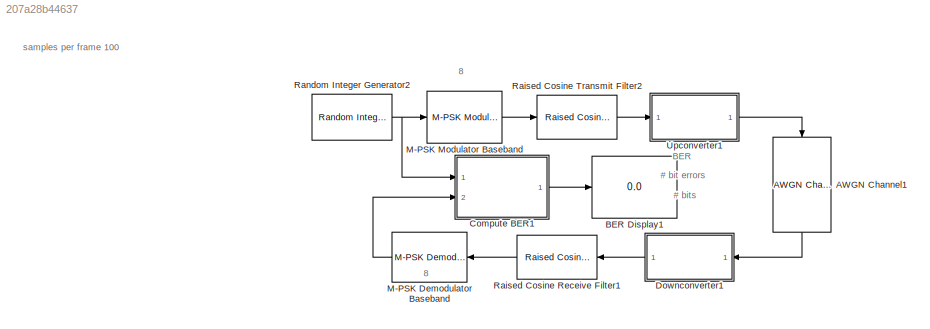
MODEL slx_207a28b44637
KIND model
CONFIG AbsTol = auto
CONFIG EnableMultiTasking = off
CONFIG FixedStep = auto
CONFIG MaxStep = auto
CONFIG MinStep = auto
CONFIG RelTol = 1e-3
CONFIG SampleTimeConstraint = Unconstrained
CONFIG SolverName = VariableStepAuto
CONFIG StartTime = 0.0
CONFIG StopTime = 1000*1e-6
BLOCK [Reference] AWGN Channel1  REF=commchan3/AWGN
Channel
  NameLocation = left
  Ports = [1, 1]
  SourceBlock = commchan3/AWGN\nChannel
  SourceProductBaseCode = CM
  SourceType = AWGN Channel
  UserDataPersistent = on
BLOCK [Display] BER Display1
  Decimation = 1
  Ports = [1]
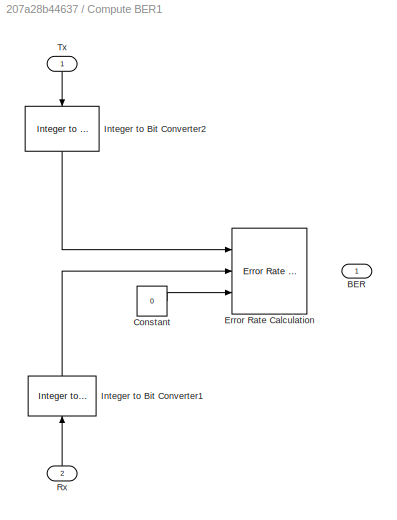
BLOCK [SubSystem] Compute BER1
  Ports = [2, 1]
  RequestExecContextInheritance = off
BLOCK [Outport] Compute BER1/BER
  VectorParamsAs1DForOutWhenUnconnected = off
BLOCK [Constant] Compute BER1/Constant
  SampleTime = cnst_sample_time
  Value = 0
BLOCK [Reference] Compute BER1/Error Rate Calculation  REF=commsink2/Error Rate
Calculation
  Ports = [3]
  SourceBlock = commsink2/Error Rate\nCalculation
  SourceProductBaseCode = CM
  SourceType = Error Rate Calculation
BLOCK [Reference] Compute BER1/Integer to Bit Converter1  REF=commutil2/Integer to Bit
Converter
  NameLocation = left
  Ports = [1, 1]
  SourceBlock = commutil2/Integer to Bit\nConverter
  SourceProductBaseCode = CM
  SourceType = Integer to Bit Converter
BLOCK [Reference] Compute BER1/Integer to Bit Converter2  REF=commutil2/Integer to Bit
Converter
  NameLocation = right
  Ports = [1, 1]
  SourceBlock = commutil2/Integer to Bit\nConverter
  SourceProductBaseCode = CM
  SourceType = Integer to Bit Converter
BLOCK [Inport] Compute BER1/Rx
  NameLocation = right
  Port = 2
BLOCK [Inport] Compute BER1/Tx
  NameLocation = right
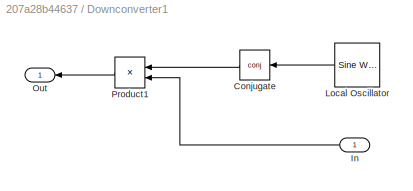
BLOCK [SubSystem] Downconverter1
  Ports = [1, 1]
  RequestExecContextInheritance = off
BLOCK [Math] Downconverter1/Conjugate
  NameLocation = top
  Operator = conj
  Ports = [1, 1]
  SignedPower = on
BLOCK [Inport] Downconverter1/In
  NameLocation = top
BLOCK [Reference] Downconverter1/Local Oscillator  REF=dspsrcs4/Sine Wave
  NameLocation = top
  Ports = [0, 1]
  SourceBlock = dspsrcs4/Sine Wave
  SourceProductBaseCode = DS
  SourceType = Sine Wave
BLOCK [Outport] Downconverter1/Out
  NameLocation = top
  VectorParamsAs1DForOutWhenUnconnected = off
BLOCK [Product] Downconverter1/Product1
  Ports = [2, 1]
  RndMeth = Zero
BLOCK [Reference] M-PSK Demodulator Baseband  REF=commdigbbndpm3/M-PSK
Demodulator
Baseband
  NameLocation = top
  Ports = [1, 1]
  SourceBlock = commdigbbndpm3/M-PSK\nDemodulator\nBaseband
  SourceProductBaseCode = CM
  SourceType = M-PSK Demodulator Baseband
BLOCK [Reference] M-PSK Modulator Baseband  REF=commdigbbndpm3/M-PSK
Modulator
Baseband
  Ports = [1, 1]
  SourceBlock = commdigbbndpm3/M-PSK\nModulator\nBaseband
  SourceProductBaseCode = CM
  SourceType = M-PSK Modulator Baseband
BLOCK [Reference] Raised Cosine Receive Filter1  REF=commfilt2/Raised Cosine
Receive Filter
  NameLocation = top
  Ports = [1, 1]
  SourceBlock = commfilt2/Raised Cosine\nReceive Filter
  SourceProductBaseCode = CM
  SourceType = Raised Cosine Receive Filter
  UserDataPersistent = on
BLOCK [Reference] Raised Cosine Transmit Filter2  REF=commfilt2/Raised Cosine
Transmit Filter
  Ports = [1, 1]
  SourceBlock = commfilt2/Raised Cosine\nTransmit Filter
  SourceProductBaseCode = CM
  SourceType = Raised Cosine Transmit Filter
  UserDataPersistent = on
BLOCK [Reference] Random Integer Generator2  REF=commrandsrc3/Random Integer
Generator
  Ports = [0, 1]
  SourceBlock = commrandsrc3/Random Integer\nGenerator
  SourceProductBaseCode = CM
  SourceType = Random Integer Generator
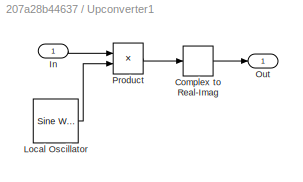
BLOCK [SubSystem] Upconverter1
  Ports = [1, 1]
  RequestExecContextInheritance = off
BLOCK [ComplexToRealImag] Upconverter1/Complex to Real-Imag
  Output = Real
  Ports = [1, 1]
BLOCK [Inport] Upconverter1/In
BLOCK [Reference] Upconverter1/Local Oscillator  REF=dspsrcs4/Sine Wave
  Ports = [0, 1]
  SourceBlock = dspsrcs4/Sine Wave
  SourceProductBaseCode = DS
  SourceType = Sine Wave
BLOCK [Outport] Upconverter1/Out
  VectorParamsAs1DForOutWhenUnconnected = off
BLOCK [Product] Upconverter1/Product
  Ports = [2, 1]
  RndMeth = Zero
ANNOTATION (root): # bit errors
ANNOTATION (root): # bits
ANNOTATION (root): 8
ANNOTATION (root): BER
ANNOTATION (root): samples per frame 100
LINE AWGN Channel1:1 -> Downconverter1:1
LINE Compute BER1/Constant:1 -> Compute BER1/Error Rate Calculation:3
LINE Compute BER1/Integer to Bit Converter1:1 -> Compute BER1/Error Rate Calculation:2
LINE Compute BER1/Integer to Bit Converter2:1 -> Compute BER1/Error Rate Calculation:1
LINE Compute BER1/Rx:1 -> Compute BER1/Integer to Bit Converter1:1
LINE Compute BER1/Tx:1 -> Compute BER1/Integer to Bit Converter2:1
LINE Compute BER1:1 -> BER Display1:1
LINE Downconverter1/Conjugate:1 -> Downconverter1/Product1:1
LINE Downconverter1/In:1 -> Downconverter1/Product1:2
LINE Downconverter1/Local Oscillator:1 -> Downconverter1/Conjugate:1
LINE Downconverter1/Product1:1 -> Downconverter1/Out:1
LINE Downconverter1:1 -> Raised Cosine Receive Filter1:1
LINE M-PSK Demodulator Baseband:1 -> Compute BER1:2
LINE M-PSK Modulator Baseband:1 -> Raised Cosine Transmit Filter2:1
LINE Raised Cosine Receive Filter1:1 -> M-PSK Demodulator Baseband:1
LINE Raised Cosine Transmit Filter2:1 -> Upconverter1:1
NET Random Integer Generator2:1 -> Compute BER1:1, M-PSK Modulator Baseband:1
LINE Upconverter1/Complex to Real-Imag:1 -> Upconverter1/Out:1
LINE Upconverter1/In:1 -> Upconverter1/Product:1
LINE Upconverter1/Local Oscillator:1 -> Upconverter1/Product:2
LINE Upconverter1/Product:1 -> Upconverter1/Complex to Real-Imag:1
LINE Upconverter1:1 -> AWGN Channel1:1
note: NET lines group one-source signal fan-out (src -> all destinations, sorted); 1:1 wires keep LINE
